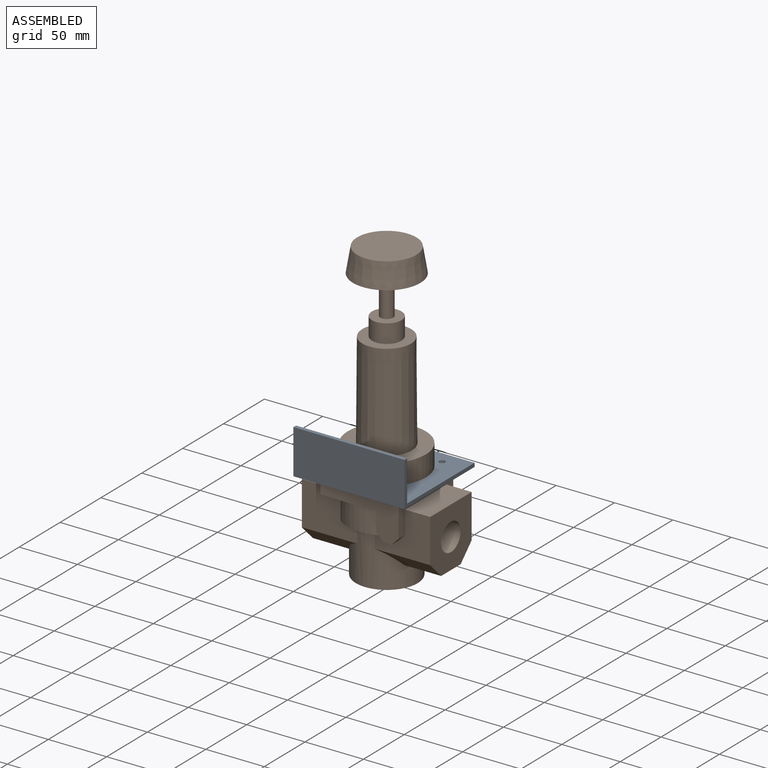
[diagram: assembled view]
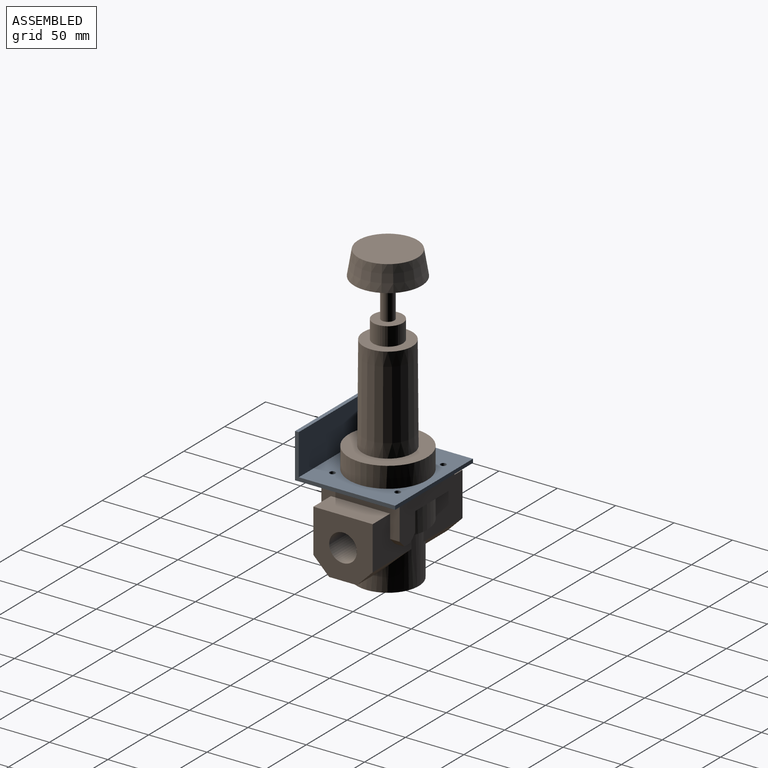
[diagram: assembled view, second angle]
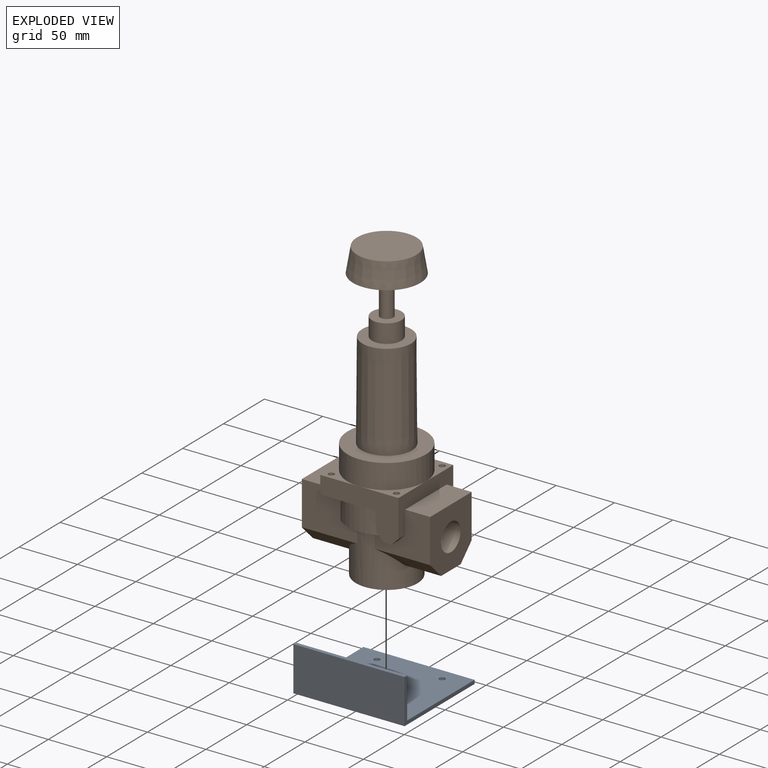
[diagram: exploded view]
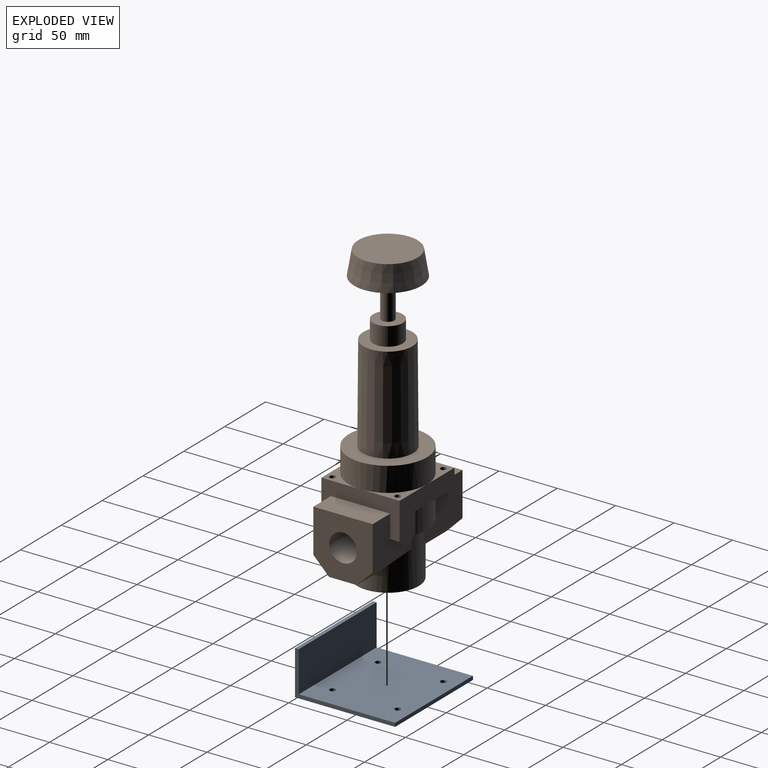
[diagram: exploded view, second angle]
ASSEMBLY  parts=2 mates=2
PART A: 12 faces, bbox 95.3x85.7x38.1 mm
  f0: plane 95.25x82.55mm, normal (0,0,-1), area 7785mm2, adj f3,f4,f5,f6,f8,f9,f10,f11
  f1: plane 95.25x38.1mm, normal (0,1,0), area 3629mm2, adj f2,f4,f5,f7
  f2: plane 95.25x85.73mm, normal (0,0,1), area 8087.4mm2, adj f1,f3,f4,f5,f8,f9,f10,f11
  f3: plane 95.25x3.18mm, normal (0,-1,0), area 302.4mm2, adj f0,f2,f4,f5
  f4: plane 85.73x38.1mm, normal (1,0,0), area 383.1mm2, adj f0,f1,f2,f3,f6,f7
  f5: plane 85.73x38.1mm, normal (-1,0,0), area 383.1mm2, adj f0,f1,f2,f3,f6,f7
  f6: plane 95.25x34.93mm, normal (0,-1,0), area 3326.6mm2, adj f0,f4,f5,f7
  f7: plane 95.25x3.18mm, normal (0,0,-1), area 302.4mm2, adj f1,f4,f5,f6
  f8: cylinder r=2.49mm len=4.98mm, axis (0,0,1), area 49.7mm2, adj f0,f2
  f9: cylinder r=2.49mm len=4.98mm, axis (0,0,1), area 49.7mm2, adj f0,f2
  f10: cylinder r=2.49mm len=4.98mm, axis (0,0,1), area 49.7mm2, adj f0,f2
  f11: cylinder r=2.49mm len=4.98mm, axis (0,0,1), area 49.7mm2, adj f0,f2
PART B: 59 faces, bbox 110x67.1x254 mm
  f0: cylinder r=33.53mm len=67.06mm, axis (0,0,-1), area 4414.4mm2, adj f1,f11,f12,f13,f29
  f1: plane 67.06x67.06mm, normal (0,0,1), area 2067.2mm2, adj f0,f2
  f2: cone r=21.59mm half-angle=0.4deg, axis (0,0,-1), area 11033.9mm2, adj f1,f3
  f3: plane 41.91x41.91mm, normal (0,0,1), area 872.8mm2, adj f2,f4
  f4: cylinder r=12.7mm len=25.4mm, axis (0,0,-1), area 1266.8mm2, adj f3,f5
  f5: plane 25.4x25.4mm, normal (0,0,1), area 410.8mm2, adj f4,f6
  f6: cylinder r=5.52mm len=33.15mm, axis (0,0,-1), area 1150.6mm2, adj f5,f7
  f7: plane 57.79x57.79mm, normal (0,0,-1), area 2526.6mm2, adj f6,f8
  f8: cone r=28.89mm half-angle=9.5deg, axis (0,0,-1), area 3602.1mm2, adj f7,f9
  f9: plane 50.8x50.8mm, normal (0,0,1), area 2026.8mm2, adj f8
  f10: plane 16.51x3.29mm, normal (-1,0,0), area 54.3mm2, adj f15,f20,f26,f47
  f11: plane 33.53x33.53mm, normal (0,0,1), area 221mm2, adj f0,f14,f19,f58
  f12: plane 33.53x33.53mm, normal (0,0,1), area 221mm2, adj f0,f14,f23,f56
  f13: plane 33.53x33.53mm, normal (0,0,1), area 221mm2, adj f0,f15,f23,f54
  f14: plane 67.06x37.72mm, normal (0,-1,0), area 1414.5mm2, adj f11,f12,f16,f19,f22,f23,f24,f25
  f15: plane 67.06x37.72mm, normal (0,1,0), area 1414.5mm2, adj f10,f13,f17,f18,f19,f20,f21,f23
  f16: plane 8.13x5.97mm, normal (-0.71,0,-0.71), area 49.5mm2, adj f14,f25,f27,f45,f46,f48
  f17: plane 8.13x7.11mm, normal (0,0,-1), area 57.8mm2, adj f15,f18,f26,f43
  f18: plane 8.13x5.97mm, normal (0.71,0,-0.71), area 68.6mm2, adj f15,f17,f19,f43
  f19: plane 67.06x31.75mm, normal (1,0,0), area 1129mm2, adj f11,f14,f15,f18,f28,f29,f43,f44
  f20: plane 14.48x3.29mm, normal (0,0,-1), area 15.5mm2, adj f10,f15,f47
  f21: plane 33.53x8.13mm, normal (0,0,-1), area 150.7mm2, adj f15,f23,f42,f47
  f22: plane 14.48x3.29mm, normal (0,0,-1), area 15.5mm2, adj f14,f25,f48
  f23: plane 67.06x15.24mm, normal (-1,0,0), area 860.6mm2, adj f12,f13,f14,f15,f21,f24,f40,f41
  f24: plane 33.53x8.13mm, normal (0,0,-1), area 150.7mm2, adj f14,f23,f41,f48
  f25: plane 16.51x3.29mm, normal (-1,0,0), area 54.3mm2, adj f14,f16,f22,f48
  f26: plane 8.13x5.97mm, normal (-0.71,0,-0.71), area 49.5mm2, adj f10,f15,f17,f43,f47,f49
  f27: plane 8.13x7.11mm, normal (0,0,-1), area 57.8mm2, adj f14,f16,f28,f45
  f28: plane 8.13x5.97mm, normal (0.71,0,-0.71), area 68.6mm2, adj f14,f19,f27,f45
  f29: plane 33.53x33.53mm, normal (0,0,1), area 221mm2, adj f0,f15,f19,f52
  f30: plane 31.35x23.86mm, normal (0,0,-1), area 702.3mm2, adj f33,f34,f35,f37
  f31: plane 52.96x52.96mm, normal (0,0,-1), area 2202.8mm2, adj f37
  f32: plane 31.35x23.86mm, normal (0,0,-1), area 702.3mm2, adj f36,f37,f38,f39
  f33: plane 47.51x13.47mm, normal (0,-0.71,-0.71), area 707.6mm2, adj f30,f35,f37,f45
  f34: plane 47.51x13.47mm, normal (0,0.71,-0.71), area 707.6mm2, adj f30,f35,f37,f43
  f35: plane 50.8x50.8mm, normal (1,0,0), area 1958.1mm2, adj f30,f33,f34,f43,f44,f45,f50
  f36: plane 47.51x13.47mm, normal (0,0.71,-0.71), area 707.6mm2, adj f32,f37,f39,f42
  f37: cylinder r=26.48mm len=52.96mm, axis (0,0,-1), area 4476.9mm2, adj f30,f31,f32,f33,f34,f36,f38,f41
  f38: plane 47.51x13.47mm, normal (0,-0.71,-0.71), area 707.6mm2, adj f32,f37,f39,f41
  f39: plane 50.8x50.8mm, normal (-1,0,0), area 1958.1mm2, adj f32,f36,f38,f40,f41,f42,f50
  f40: plane 50.8x21.46mm, normal (0,0,1), area 1090.3mm2, adj f23,f39,f41,f42
  f41: plane 47.51x37.33mm, normal (0,-1,0), area 1403.4mm2, adj f23,f24,f37,f38,f39,f40,f46,f48
  f42: plane 47.51x37.33mm, normal (0,1,0), area 1403.4mm2, adj f21,f23,f36,f37,f39,f40,f47,f49
  f43: plane 47.51x37.33mm, normal (0,1,0), area 1152.6mm2, adj f17,f18,f19,f26,f34,f35,f37,f44
  f44: plane 50.8x21.46mm, normal (0,0,1), area 1090.3mm2, adj f19,f35,f43,f45
  f45: plane 47.51x37.33mm, normal (0,-1,0), area 1152.6mm2, adj f16,f19,f27,f28,f33,f35,f37,f44
  f46: plane 39.81x8.13mm, normal (0,0,-1), area 226.7mm2, adj f16,f37,f41,f45,f48
  f47: cylinder r=33.53mm len=39.81mm, axis (0,0,-1), area 781.3mm2, adj f10,f20,f21,f26,f42,f49
  f48: cylinder r=33.53mm len=39.81mm, axis (0,0,-1), area 781.3mm2, adj f16,f22,f24,f25,f41,f46
  f49: plane 39.81x8.13mm, normal (0,0,-1), area 226.7mm2, adj f26,f37,f42,f43,f47
  f50: cylinder r=11.85mm len=109.98mm, axis (1,0,0), area 8188.2mm2, adj f35,f39
  f51: cone r=0mm half-angle=59deg, axis (0,0,1), area 23.6mm2, adj f52
  f52: cylinder r=2.54mm len=12.7mm, axis (0,0,1), area 202.7mm2, adj f29,f51
  f53: cone r=0mm half-angle=59deg, axis (0,0,1), area 23.6mm2, adj f54
  f54: cylinder r=2.54mm len=12.7mm, axis (0,0,1), area 202.7mm2, adj f13,f53
  f55: cone r=0mm half-angle=59deg, axis (0,0,1), area 23.6mm2, adj f56
  f56: cylinder r=2.54mm len=12.7mm, axis (0,0,1), area 202.7mm2, adj f12,f55
  f57: cone r=0mm half-angle=59deg, axis (0,0,1), area 23.6mm2, adj f58
  f58: cylinder r=2.54mm len=12.7mm, axis (0,0,1), area 202.7mm2, adj f11,f57
PLACE A rot(axis=(1,0,0),180deg) t=(0,-46.23,80.65)mm
PLACE B at identity fixed
MATE planar A.f2 <-> B.f29  axis (0,0,-1) through (0,-3.4,80.65)mm
MATE cylindrical B.f57 <-> A.f9  axis (0,0,1) through (27.94,-27.94,80.65)mm
